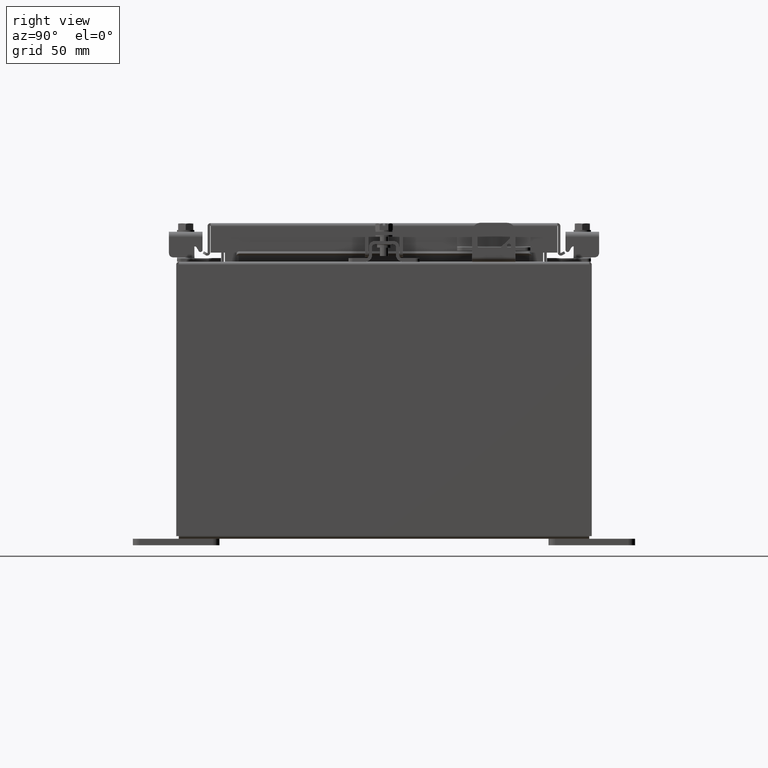
[diagram: clean part render]
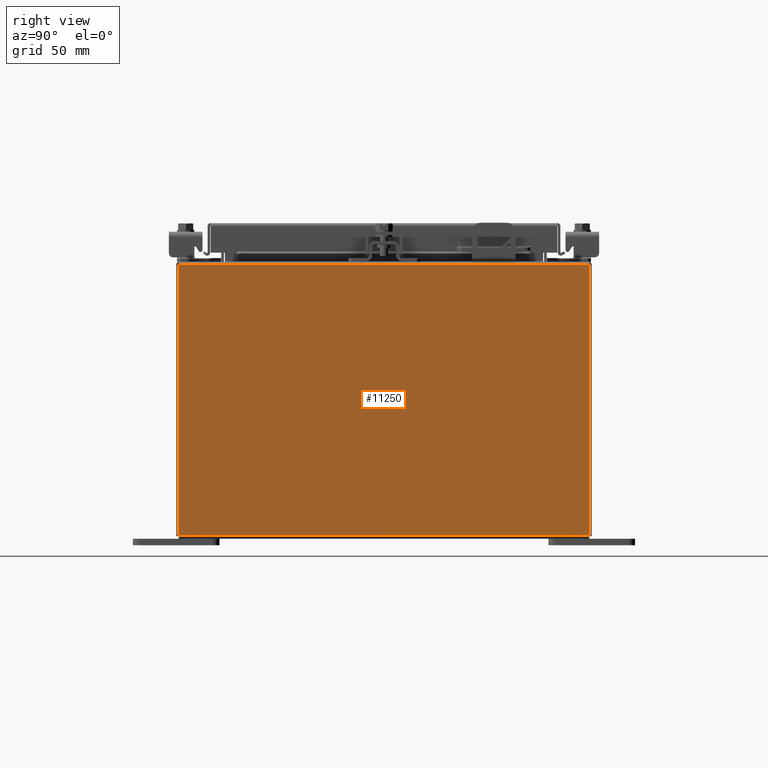
[diagram: same view with one face highlighted and labeled with its STEP entity id]
A machine part, right view. The second image highlights one B-rep face of the part: STEP entity #11250.
In plain terms, the highlighted planar face has unit normal (-1, 0, 0).
Its self-contained STEP definition (entity closure, byte-faithful):
#223 = EDGE_CURVE ( 'NONE', #7516, #4733, #17114, .T. ) ;
#576 = CARTESIAN_POINT ( 'NONE',  ( 6.000000000000001800, -5.925300000000001800, 0.01299999999999985200 ) ) ;
#954 = CARTESIAN_POINT ( 'NONE',  ( 6.000000000000001800, -5.925300000000001800, 0.01299999999999985200 ) ) ;
#1636 = CARTESIAN_POINT ( 'NONE',  ( 6.000000000000029300, -5.925300000000000000, 7.837599999999998300 ) ) ;
#2944 = VECTOR ( 'NONE', #3783, 39.37007874015748100 ) ;
#3599 = FACE_OUTER_BOUND ( 'NONE', #6867, .T. ) ;
#3753 = EDGE_CURVE ( 'NONE', #4733, #20829, #6706, .T. ) ;
#3783 = DIRECTION ( 'NONE',  ( -0.0000000000000000000, -1.000000000000000000, -0.0000000000000000000 ) ) ;
#4455 = CARTESIAN_POINT ( 'NONE',  ( 6.000000000000001800, -5.925300000000001800, -2.013030490331353800E-014 ) ) ;
#4733 = VERTEX_POINT ( 'NONE', #1636 ) ;
#5806 = DIRECTION ( 'NONE',  ( -1.000000000000000000, 0.0000000000000000000, 3.446996320220386900E-015 ) ) ;
#6058 = CARTESIAN_POINT ( 'NONE',  ( 6.000000000000001800, 0.0000000000000000000, -2.094985930141282000E-014 ) ) ;
#6706 = LINE ( 'NONE', #4455, #10602 ) ;
#6867 = EDGE_LOOP ( 'NONE', ( #15009, #19504, #13099, #7315 ) ) ;
#7315 = ORIENTED_EDGE ( 'NONE', *, *, #13661, .T. ) ;
#7516 = VERTEX_POINT ( 'NONE', #18733 ) ;
#8247 = LINE ( 'NONE', #17214, #22920 ) ;
#9283 = DIRECTION ( 'NONE',  ( -0.0000000000000000000, -1.000000000000000000, -0.0000000000000000000 ) ) ;
#9793 = EDGE_CURVE ( 'NONE', #13651, #20829, #11108, .T. ) ;
#10567 = AXIS2_PLACEMENT_3D ( 'NONE', #6058, #5806, #17975 ) ;
#10602 = VECTOR ( 'NONE', #15428, 39.37007874015748100 ) ;
#11108 = LINE ( 'NONE', #576, #16194 ) ;
#11250 = ADVANCED_FACE ( 'NONE', ( #3599 ), #22326, .F. ) ;
#13099 = ORIENTED_EDGE ( 'NONE', *, *, #9793, .F. ) ;
#13651 = VERTEX_POINT ( 'NONE', #21225 ) ;
#13661 = EDGE_CURVE ( 'NONE', #13651, #7516, #8247, .T. ) ;
#15009 = ORIENTED_EDGE ( 'NONE', *, *, #223, .T. ) ;
#15428 = DIRECTION ( 'NONE',  ( -3.446996320220387700E-015, -1.378798528088154900E-016, -1.000000000000000000 ) ) ;
#16194 = VECTOR ( 'NONE', #9283, 39.37007874015748100 ) ;
#16907 = CARTESIAN_POINT ( 'NONE',  ( 6.000000000000030200, 5.925299999999998200, 7.837599999999992100 ) ) ;
#17114 = LINE ( 'NONE', #16907, #2944 ) ;
#17214 = CARTESIAN_POINT ( 'NONE',  ( 6.000000000000001800, 5.925299999999999100, -2.094985930141282000E-014 ) ) ;
#17975 = DIRECTION ( 'NONE',  ( 3.446996320220386900E-015, 0.0000000000000000000, 1.000000000000000000 ) ) ;
#18733 = CARTESIAN_POINT ( 'NONE',  ( 6.000000000000030200, 5.925299999999997300, 7.837599999999992100 ) ) ;
#19504 = ORIENTED_EDGE ( 'NONE', *, *, #3753, .T. ) ;
#20829 = VERTEX_POINT ( 'NONE', #954 ) ;
#21225 = CARTESIAN_POINT ( 'NONE',  ( 6.000000000000001800, 5.925299999999998200, 0.01299999999999985200 ) ) ;
#22242 = DIRECTION ( 'NONE',  ( 3.446996320220387700E-015, 0.0000000000000000000, 1.000000000000000000 ) ) ;
#22326 = PLANE ( 'NONE',  #10567 ) ;
#22920 = VECTOR ( 'NONE', #22242, 39.37007874015748100 ) ;